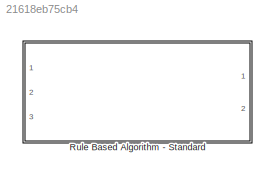
MODEL slx_21618eb75cb4
KIND model
CONFIG AbsTol = auto
CONFIG EnableMultiTasking = off
CONFIG FixedStep = auto
CONFIG MaxStep = auto
CONFIG MinStep = auto
CONFIG RelTol = 1e-3
CONFIG SampleTimeConstraint = Unconstrained
CONFIG Solver = VariableStepAuto
CONFIG SolverName = VariableStepAuto
CONFIG StartTime = 0.0
CONFIG StopTime = 10.0
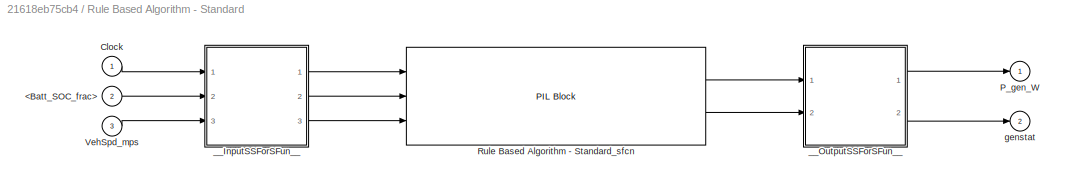
BLOCK [SubSystem] Rule Based Algorithm - Standard
  DialogController = pil_create_dialog
  LoadFcn = try\n   if ~strcmp(rtw.pil.getPILVersion, '9.5 (R2018b)_13')\n      set_param(gcb, 'DialogController', '');\n      set_param(gcb, 'DialogControllerArgs', '');\n   end\ncatch e\n      set_param(gcb, 'DialogController', '');\n      set_param(gcb, 'DialogControllerArgs', '');\nend
  Ports = [3, 2]
  RequestExecContextInheritance = off
BLOCK [Inport] Rule Based Algorithm - Standard/<Batt_SOC_frac>
  IconDisplay = Port number
  Port = 2
BLOCK [Inport] Rule Based Algorithm - Standard/Clock
  IconDisplay = Port number
BLOCK [Outport] Rule Based Algorithm - Standard/P_gen_W
  IconDisplay = Port number
BLOCK [Reference] Rule Based Algorithm - Standard/Rule Based Algorithm - Standard_sfcn  REF=pil_lib/PIL Block
  Ports = [3, 2]
  SourceBlock = pil_lib/PIL Block
  SourceType = XILBlock
BLOCK [Inport] Rule Based Algorithm - Standard/VehSpd_mps
  IconDisplay = Port number
  Port = 3
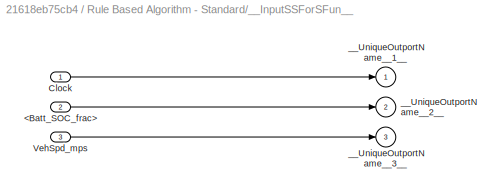
BLOCK [SubSystem] Rule Based Algorithm - Standard/__InputSSForSFun__
  PermitHierarchicalResolution = ExplicitOnly
  Ports = [3, 3]
  RequestExecContextInheritance = off
BLOCK [Inport] Rule Based Algorithm - Standard/__InputSSForSFun__/<Batt_SOC_frac>
  IconDisplay = Port number
  Port = 2
BLOCK [Inport] Rule Based Algorithm - Standard/__InputSSForSFun__/Clock
  IconDisplay = Port number
BLOCK [Inport] Rule Based Algorithm - Standard/__InputSSForSFun__/VehSpd_mps
  IconDisplay = Port number
  Port = 3
BLOCK [Outport] Rule Based Algorithm - Standard/__InputSSForSFun__/__UniqueOutportName__1__
  IconDisplay = Port number
BLOCK [Outport] Rule Based Algorithm - Standard/__InputSSForSFun__/__UniqueOutportName__2__
  IconDisplay = Port number
  Port = 2
BLOCK [Outport] Rule Based Algorithm - Standard/__InputSSForSFun__/__UniqueOutportName__3__
  IconDisplay = Port number
  Port = 3
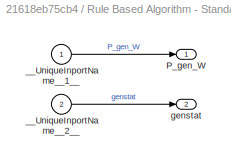
BLOCK [SubSystem] Rule Based Algorithm - Standard/__OutputSSForSFun__
  PermitHierarchicalResolution = ExplicitOnly
  Ports = [2, 2]
  RequestExecContextInheritance = off
BLOCK [Outport] Rule Based Algorithm - Standard/__OutputSSForSFun__/P_gen_W
  IconDisplay = Port number
BLOCK [Inport] Rule Based Algorithm - Standard/__OutputSSForSFun__/__UniqueInportName__1__
  IconDisplay = Port number
BLOCK [Inport] Rule Based Algorithm - Standard/__OutputSSForSFun__/__UniqueInportName__2__
  IconDisplay = Port number
  Port = 2
BLOCK [Outport] Rule Based Algorithm - Standard/__OutputSSForSFun__/genstat
  IconDisplay = Port number
  Port = 2
BLOCK [Outport] Rule Based Algorithm - Standard/genstat
  IconDisplay = Port number
  Port = 2
LINE Rule Based Algorithm - Standard/<Batt_SOC_frac>:1 -> Rule Based Algorithm - Standard/__InputSSForSFun__:2
LINE Rule Based Algorithm - Standard/Clock:1 -> Rule Based Algorithm - Standard/__InputSSForSFun__:1
LINE Rule Based Algorithm - Standard/Rule Based Algorithm - Standard_sfcn:1 -> Rule Based Algorithm - Standard/__OutputSSForSFun__:1
LINE Rule Based Algorithm - Standard/Rule Based Algorithm - Standard_sfcn:2 -> Rule Based Algorithm - Standard/__OutputSSForSFun__:2
LINE Rule Based Algorithm - Standard/VehSpd_mps:1 -> Rule Based Algorithm - Standard/__InputSSForSFun__:3
LINE Rule Based Algorithm - Standard/__InputSSForSFun__/<Batt_SOC_frac>:1 -> Rule Based Algorithm - Standard/__InputSSForSFun__/__UniqueOutportName__2__:1
LINE Rule Based Algorithm - Standard/__InputSSForSFun__/Clock:1 -> Rule Based Algorithm - Standard/__InputSSForSFun__/__UniqueOutportName__1__:1
LINE Rule Based Algorithm - Standard/__InputSSForSFun__/VehSpd_mps:1 -> Rule Based Algorithm - Standard/__InputSSForSFun__/__UniqueOutportName__3__:1
LINE Rule Based Algorithm - Standard/__InputSSForSFun__:1 -> Rule Based Algorithm - Standard/Rule Based Algorithm - Standard_sfcn:1
LINE Rule Based Algorithm - Standard/__InputSSForSFun__:2 -> Rule Based Algorithm - Standard/Rule Based Algorithm - Standard_sfcn:2
LINE Rule Based Algorithm - Standard/__InputSSForSFun__:3 -> Rule Based Algorithm - Standard/Rule Based Algorithm - Standard_sfcn:3
LINE Rule Based Algorithm - Standard/__OutputSSForSFun__/__UniqueInportName__1__:1 -> Rule Based Algorithm - Standard/__OutputSSForSFun__/P_gen_W:1
LINE Rule Based Algorithm - Standard/__OutputSSForSFun__/__UniqueInportName__2__:1 -> Rule Based Algorithm - Standard/__OutputSSForSFun__/genstat:1
LINE Rule Based Algorithm - Standard/__OutputSSForSFun__:1 -> Rule Based Algorithm - Standard/P_gen_W:1
LINE Rule Based Algorithm - Standard/__OutputSSForSFun__:2 -> Rule Based Algorithm - Standard/genstat:1
